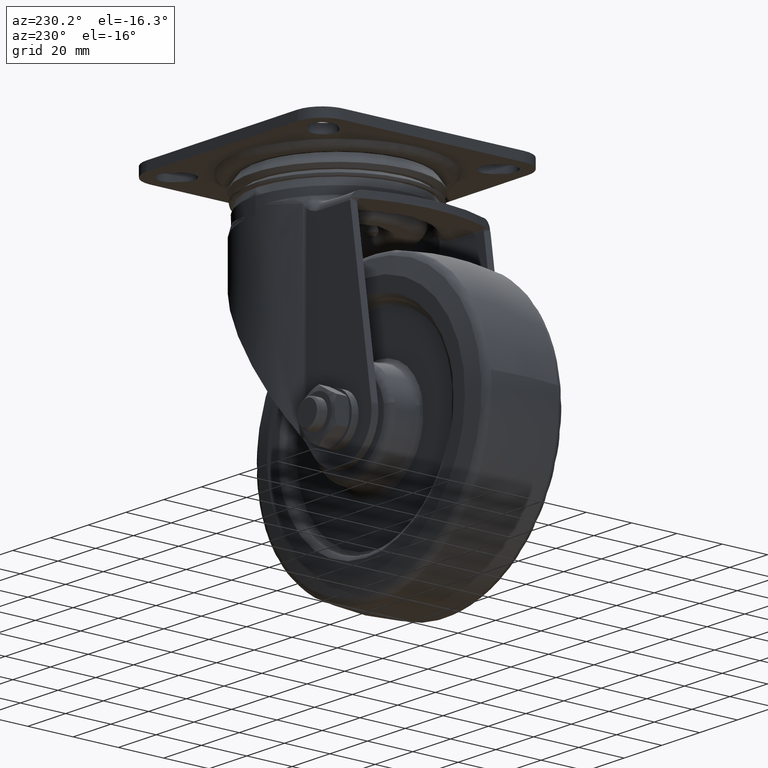
[diagram: clean part render]
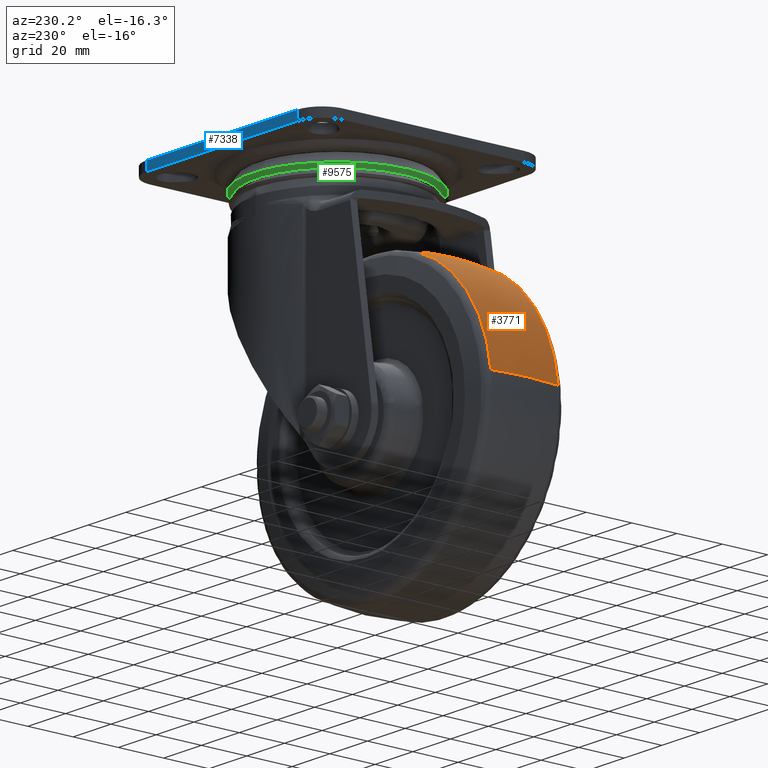
[diagram: same view with three faces highlighted in distinct colors, each labeled with its STEP entity id]
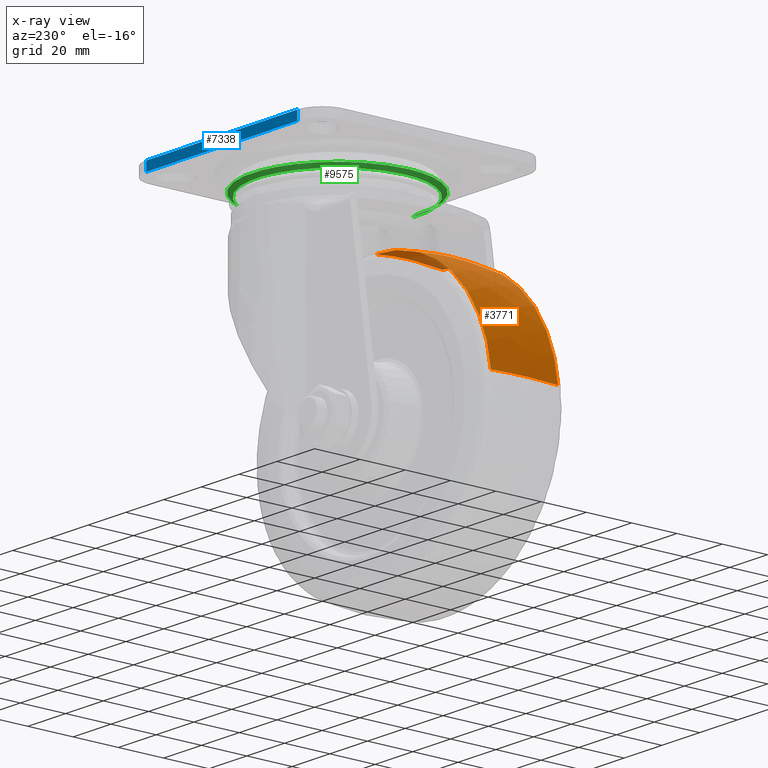
[diagram: x-ray of the same camera — body ghosted, the three highlighted faces saturated]
A machine part, auxiliary view with three faces highlighted in distinct colors.
The next image is the same camera in x-ray (body ghosted, the three faces saturated) — at least one of them is partly hidden behind the body in this view.
Their STEP definitions:

[orange] entity #3771 — the highlighted face is a freeform B-spline surface patch.
#2512=CARTESIAN_POINT('',(-99.201345112304438,14.861436919512940,-98.385909278159005));
#2513=VERTEX_POINT('',#2512);
#2529=CARTESIAN_POINT('',(-38.000024999999987,14.861418385091749,-43.886591201509113));
#2530=VERTEX_POINT('',#2529);
#2531=CARTESIAN_POINT('',(-38.000024999999987,14.861418385091749,-43.886591201509113));
#2532=CARTESIAN_POINT('',(-92.866299568593661,14.861427652302343,-43.886593649904484));
#2533=CARTESIAN_POINT('',(-99.201345112304438,14.861436919512938,-98.385909278159005));
#2541=(BOUNDED_CURVE()B_SPLINE_CURVE(2,(#2531,#2532,#2533),.UNSPECIFIED.,.F.,.U.)B_SPLINE_CURVE_WITH_KNOTS((3,3),(0.500000000000000,0.730000148657227),.UNSPECIFIED.)CURVE()GEOMETRIC_REPRESENTATION_ITEM()RATIONAL_B_SPLINE_CURVE((1.0,0.730538064528849,0.956886410784328))REPRESENTATION_ITEM(''));
#2542=EDGE_CURVE('',#2530,#2513,#2541,.T.);
#2680=CARTESIAN_POINT('',(-38.000025000000001,-14.861443849847680,-43.886594250674079));
#2681=VERTEX_POINT('',#2680);
#2695=CARTESIAN_POINT('',(-99.201344261339244,-14.861444115349880,-98.385909419852737));
#2696=VERTEX_POINT('',#2695);
#2697=CARTESIAN_POINT('',(-38.000025000000001,-14.861443849847680,-43.886594250674079));
#2698=CARTESIAN_POINT('',(-92.866299178750495,-14.861443982598788,-43.886595224230526));
#2699=CARTESIAN_POINT('',(-99.201344261339244,-14.861444115349883,-98.385909419852737));
#2707=(BOUNDED_CURVE()B_SPLINE_CURVE(2,(#2697,#2698,#2699),.UNSPECIFIED.,.F.,.U.)B_SPLINE_CURVE_WITH_KNOTS((3,3),(0.500000000000000,0.730000148773882),.UNSPECIFIED.)CURVE()GEOMETRIC_REPRESENTATION_ITEM()RATIONAL_B_SPLINE_CURVE((1.0,0.730538064392179,0.956886411013935))REPRESENTATION_ITEM(''));
#2708=EDGE_CURVE('',#2681,#2696,#2707,.T.);
#3695=CARTESIAN_POINT('',(-38.000025000000001,-14.861443849847682,-43.886594250674072));
#3696=CARTESIAN_POINT('',(-38.000024999999994,-7.457167853504868,-43.0));
#3697=CARTESIAN_POINT('',(-38.000025000000001,7.898711E-015,-43.0));
#3698=CARTESIAN_POINT('',(-38.000025000000001,7.457154984536426,-43.0));
#3699=CARTESIAN_POINT('',(-38.000024999999994,14.861418385091746,-43.886591201509113));
#3707=(BOUNDED_CURVE()B_SPLINE_CURVE(2,(#3695,#3696,#3697,#3698,#3699),.UNSPECIFIED.,.F.,.U.)B_SPLINE_CURVE_WITH_KNOTS((3,2,3),(0.441281283883758,0.500000000000000,0.558718616378616),.UNSPECIFIED.)CURVE()GEOMETRIC_REPRESENTATION_ITEM()RATIONAL_B_SPLINE_CURVE((0.972228169688118,0.984266367436061,1.0,0.984266394160677,0.972228210583480))REPRESENTATION_ITEM(''));
#3708=EDGE_CURVE('',#2681,#2530,#3707,.T.);
#3714=CARTESIAN_POINT('',(-99.201344261339244,-14.861444115349883,-98.385909419852737));
#3715=CARTESIAN_POINT('',(-100.082008679766740,-7.457167987679913,-98.283539483788601));
#3716=CARTESIAN_POINT('',(-100.082008678535560,-5.516338E-014,-98.283539473199625));
#3717=CARTESIAN_POINT('',(-100.082008677304390,7.457164351163504,-98.283539462610648));
#3718=CARTESIAN_POINT('',(-99.201345112304423,14.861436919512945,-98.385909278159005));
#3726=(BOUNDED_CURVE()B_SPLINE_CURVE(2,(#3714,#3715,#3716,#3717,#3718),.UNSPECIFIED.,.F.,.U.)B_SPLINE_CURVE_WITH_KNOTS((3,2,3),(0.441281282843847,0.500000000000000,0.558718688972271),.UNSPECIFIED.)CURVE()GEOMETRIC_REPRESENTATION_ITEM()RATIONAL_B_SPLINE_CURVE((0.930311638880463,0.941830823334884,0.956886118190660,0.941830830561143,0.930311649938449))REPRESENTATION_ITEM(''));
#3727=EDGE_CURVE('',#2696,#2513,#3726,.T.);
#3732=CARTESIAN_POINT('',(-37.601506812507964,-16.359849631098349,-44.075202965476478));
#3733=CARTESIAN_POINT('',(-37.594530998867967,-8.215257090693427,-43.0));
#3734=CARTESIAN_POINT('',(-37.594530998867974,7.898711E-015,-43.000000000000021));
#3735=CARTESIAN_POINT('',(-37.594530998867953,8.215253233041887,-42.999999999999993));
#3736=CARTESIAN_POINT('',(-37.601506805984833,16.359842015055975,-44.075201960049938));
#3737=CARTESIAN_POINT('',(-37.800497803771606,-16.359849631098346,-44.075202965476493));
#3738=CARTESIAN_POINT('',(-37.797005203983971,-8.215257090693427,-42.999999999999993));
#3739=CARTESIAN_POINT('',(-37.797005203983979,7.898711E-015,-43.000000000000021));
#3740=CARTESIAN_POINT('',(-37.797005203983964,8.215253233041885,-42.999999999999993));
#3741=CARTESIAN_POINT('',(-37.800497800505646,16.359842015055971,-44.075201960049938));
#3742=CARTESIAN_POINT('',(-92.698296984222708,-16.359849631098353,-44.075202965476471));
#3743=CARTESIAN_POINT('',(-93.655756301684022,-8.215257090693429,-42.999999999999993));
#3744=CARTESIAN_POINT('',(-93.655756301683994,7.898711E-015,-42.999999999999986));
#3745=CARTESIAN_POINT('',(-93.655756301683994,8.215253233041887,-42.999999999999986));
#3746=CARTESIAN_POINT('',(-92.698297879546672,16.359842015055985,-44.075201960049938));
#3747=CARTESIAN_POINT('',(-99.038074149320352,-16.359849631098342,-98.614816507233655));
#3748=CARTESIAN_POINT('',(-100.106507332996340,-8.215257090693431,-98.494295641611401));
#3749=CARTESIAN_POINT('',(-100.106507332996340,7.898711E-015,-98.494295641611416));
#3750=CARTESIAN_POINT('',(-100.106507332996330,8.215253233041887,-98.494295641611416));
#3751=CARTESIAN_POINT('',(-99.038075148416411,16.359842015055978,-98.614816394534159));
#3752=CARTESIAN_POINT('',(-99.062100653041355,-16.359849631098346,-98.821510874177136));
#3753=CARTESIAN_POINT('',(-100.130954405759440,-8.215257090693431,-98.704608065219517));
#3754=CARTESIAN_POINT('',(-100.130954405759440,7.898711E-015,-98.704608065219517));
#3755=CARTESIAN_POINT('',(-100.130954405759450,8.215253233041887,-98.704608065219531));
#3756=CARTESIAN_POINT('',(-99.062101652530686,16.359842015055982,-98.821510764860889));
#3764=(BOUNDED_SURFACE()B_SPLINE_SURFACE(2,2,((#3732,#3737,#3742,#3747,#3752),(#3733,#3738,#3743,#3748,#3753),(#3734,#3739,#3744,#3749,#3754),(#3735,#3740,#3745,#3750,#3755),(#3736,#3741,#3746,#3751,#3756)),.UNSPECIFIED.,.F.,.F.,.U.)B_SPLINE_SURFACE_WITH_KNOTS((3,2,3),(3,1,1,3),(0.0,16.647949397397330,33.295891112673559),(0.0,0.475823408504654,95.640445679976921,96.116330645037749),.UNSPECIFIED.)GEOMETRIC_REPRESENTATION_ITEM()RATIONAL_B_SPLINE_SURFACE(((0.972473224010546,0.971166522516549,0.708519685427588,0.929143170580955,0.930240941834553),(0.985342567184642,0.984018573296841,0.717895967213286,0.941439100201269,0.942551398944818),(1.002694619295848,1.001347309647924,0.730538238691624,0.958018004706425,0.959149891222191),(0.985342575191668,0.984018581293108,0.717895973047006,0.941439107851530,0.942551406604117),(0.972473235887548,0.971166534377591,0.708519694080874,0.929143181928758,0.930240953195764)))REPRESENTATION_ITEM('')SURFACE());
#3765=ORIENTED_EDGE('',*,*,#2542,.T.);
#3766=ORIENTED_EDGE('',*,*,#3727,.F.);
#3767=ORIENTED_EDGE('',*,*,#2708,.F.);
#3768=ORIENTED_EDGE('',*,*,#3708,.T.);
#3769=EDGE_LOOP('',(#3765,#3766,#3767,#3768));
#3770=FACE_OUTER_BOUND('',#3769,.T.);
#3771=ADVANCED_FACE('',(#3770),#3764,.T.);

[blue] entity #7338 — the highlighted face is a freeform B-spline surface patch.
#7023=CARTESIAN_POINT('',(39.999977896509812,50.999999999997698,-4.0));
#7024=VERTEX_POINT('',#7023);
#7040=CARTESIAN_POINT('',(39.999977896509812,50.999999999997698,0.0));
#7041=VERTEX_POINT('',#7040);
#7042=CARTESIAN_POINT('',(39.999977896509812,50.999999999997698,-4.0));
#7043=CARTESIAN_POINT('',(39.999977896509812,50.999999999997698,0.0));
#7044=QUASI_UNIFORM_CURVE('',1,(#7042,#7043),.UNSPECIFIED.,.F.,.U.);
#7045=EDGE_CURVE('',#7024,#7041,#7044,.T.);
#7280=CARTESIAN_POINT('',(-39.999977544248303,51.0,-4.0));
#7281=VERTEX_POINT('',#7280);
#7296=CARTESIAN_POINT('',(-39.999977544248303,51.0,0.0));
#7297=VERTEX_POINT('',#7296);
#7311=CARTESIAN_POINT('',(-39.999977544248303,51.0,-4.0));
#7312=CARTESIAN_POINT('',(-39.999977544248303,51.0,0.0));
#7313=QUASI_UNIFORM_CURVE('',1,(#7311,#7312),.UNSPECIFIED.,.F.,.U.);
#7314=EDGE_CURVE('',#7281,#7297,#7313,.T.);
#7319=CARTESIAN_POINT('',(-43.995975163458738,51.0,-4.199799992247224));
#7320=CARTESIAN_POINT('',(-43.995975163458731,51.0,0.199800099535584));
#7321=CARTESIAN_POINT('',(43.995977661486272,51.0,-4.199799992247224));
#7322=CARTESIAN_POINT('',(43.995977661486272,51.0,0.199800099535584));
#7323=B_SPLINE_SURFACE_WITH_KNOTS('',1,1,((#7319,#7321),(#7320,#7322)),.UNSPECIFIED.,.F.,.F.,.U.,(2,2),(2,2),(0.0,4.399600091782808),(0.0,87.991952824945002),.UNSPECIFIED.);
#7324=CARTESIAN_POINT('',(39.999977896509812,50.999999999997698,-4.0));
#7325=CARTESIAN_POINT('',(-39.999977544248303,51.0,-4.0));
#7326=QUASI_UNIFORM_CURVE('',1,(#7324,#7325),.UNSPECIFIED.,.F.,.U.);
#7327=EDGE_CURVE('',#7024,#7281,#7326,.T.);
#7328=ORIENTED_EDGE('',*,*,#7327,.T.);
#7329=ORIENTED_EDGE('',*,*,#7314,.T.);
#7330=CARTESIAN_POINT('',(39.999977896509812,50.999999999997698,0.0));
#7331=CARTESIAN_POINT('',(-39.999977544248303,51.0,0.0));
#7332=QUASI_UNIFORM_CURVE('',1,(#7330,#7331),.UNSPECIFIED.,.F.,.U.);
#7333=EDGE_CURVE('',#7041,#7297,#7332,.T.);
#7334=ORIENTED_EDGE('',*,*,#7333,.F.);
#7335=ORIENTED_EDGE('',*,*,#7045,.F.);
#7336=EDGE_LOOP('',(#7328,#7329,#7334,#7335));
#7337=FACE_OUTER_BOUND('',#7336,.T.);
#7338=ADVANCED_FACE('',(#7337),#7323,.T.);

[green] entity #9575 — the highlighted face is a freeform B-spline surface patch.
#9439=CARTESIAN_POINT('',(29.885800851077970,19.066830481161404,-12.387497815519083));
#9440=CARTESIAN_POINT('',(18.437773186621158,37.010739682831080,-12.387497815519081));
#9441=CARTESIAN_POINT('',(-2.781377839684592,35.340756279691448,-12.387497815519080));
#9442=CARTESIAN_POINT('',(-38.122134119376035,32.559378440006853,-12.387497815519081));
#9443=CARTESIAN_POINT('',(-35.340756279691448,-2.781377839684592,-12.387497815519080));
#9444=CARTESIAN_POINT('',(-32.559378440006853,-38.122134119376035,-12.387497815519081));
#9445=CARTESIAN_POINT('',(2.781377839684592,-35.340756279691448,-12.387497815519080));
#9446=CARTESIAN_POINT('',(31.657230039179819,20.196983901082245,-10.811568068330599));
#9447=CARTESIAN_POINT('',(19.530640322728178,39.204487304790518,-10.811568068330599));
#9448=CARTESIAN_POINT('',(-2.946239203544587,37.435518521981521,-10.811568068330599));
#9449=CARTESIAN_POINT('',(-40.381757725526114,34.489279318436942,-10.811568068330601));
#9450=CARTESIAN_POINT('',(-37.435518521981521,-2.946239203544587,-10.811568068330599));
#9451=CARTESIAN_POINT('',(-34.489279318436942,-40.381757725526114,-10.811568068330601));
#9452=CARTESIAN_POINT('',(2.946239203544587,-37.435518521981521,-10.811568068330599));
#9460=(BOUNDED_SURFACE()B_SPLINE_SURFACE(2,1,((#9439,#9446),(#9440,#9447),(#9441,#9448),(#9442,#9449),(#9443,#9450),(#9444,#9451),(#9445,#9452)),.UNSPECIFIED.,.F.,.F.,.U.)B_SPLINE_SURFACE_WITH_KNOTS((3,2,2,3),(2,2),(0.0,42.307554674293421,104.524546842372000,166.741539010450510),(0.0,2.626549578647139),.UNSPECIFIED.)GEOMETRIC_REPRESENTATION_ITEM()RATIONAL_B_SPLINE_SURFACE(((0.872532871172386,0.872532871172386),(0.800832611206852,0.800832611206852),(1.0,1.0),(0.707106781186548,0.707106781186548),(1.0,1.0),(0.707106781186548,0.707106781186548),(1.0,1.0)))REPRESENTATION_ITEM('')SURFACE());
#9461=CARTESIAN_POINT('',(-4.426286966306815,37.237883878781162,-10.850005379253060));
#9462=VERTEX_POINT('',#9461);
#9463=CARTESIAN_POINT('',(31.614024449213510,20.169419183545578,-10.850005379236590));
#9464=VERTEX_POINT('',#9463);
#9465=CARTESIAN_POINT('',(-4.426286966306814,37.237883878781162,-10.850005379253059));
#9466=CARTESIAN_POINT('',(-2.220906075885679,37.500026827682952,-10.850005379237643));
#9467=CARTESIAN_POINT('',(0.0,37.500026827682959,-10.850005379237640));
#9468=CARTESIAN_POINT('',(20.557276807284005,37.500026827682959,-10.850005379237642));
#9469=CARTESIAN_POINT('',(31.614024449213506,20.169419183545582,-10.850005379236594));
#9477=(BOUNDED_CURVE()B_SPLINE_CURVE(2,(#9465,#9466,#9467,#9468,#9469),.UNSPECIFIED.,.F.,.U.)B_SPLINE_CURVE_WITH_KNOTS((3,2,3),(0.229562473514808,0.250000000000000,0.407950112627361),.UNSPECIFIED.)CURVE()GEOMETRIC_REPRESENTATION_ITEM()RATIONAL_B_SPLINE_CURVE((0.956026754186246,0.976055948332667,1.0,0.814949932402499,0.863729296954807))REPRESENTATION_ITEM(''));
#9478=EDGE_CURVE('',#9462,#9464,#9477,.T.);
#9479=ORIENTED_EDGE('',*,*,#9478,.T.);
#9480=CARTESIAN_POINT('',(29.927952646137339,19.093722888567019,-12.349997999998569));
#9481=VERTEX_POINT('',#9480);
#9482=CARTESIAN_POINT('',(29.927952646137339,19.093722888567019,-12.349997999998569));
#9483=CARTESIAN_POINT('',(31.614024449213510,20.169419183545578,-10.850005379236590));
#9484=QUASI_UNIFORM_CURVE('',1,(#9482,#9483),.UNSPECIFIED.,.F.,.U.);
#9485=EDGE_CURVE('',#9481,#9464,#9484,.T.);
#9486=ORIENTED_EDGE('',*,*,#9485,.F.);
#9487=CARTESIAN_POINT('',(-35.500036666666851,0.0,-12.349998000000021));
#9488=VERTEX_POINT('',#9487);
#9489=CARTESIAN_POINT('',(-35.500036666666851,0.0,-12.349998000000021));
#9490=CARTESIAN_POINT('',(-35.500036666666844,35.500036666666844,-12.349998000000021));
#9491=CARTESIAN_POINT('',(0.0,35.500036666666851,-12.349998000000021));
#9492=CARTESIAN_POINT('',(19.460894888910296,35.500036666666851,-12.349998000000028));
#9493=CARTESIAN_POINT('',(29.927952646137342,19.093722888567019,-12.349997999998568));
#9501=(BOUNDED_CURVE()B_SPLINE_CURVE(2,(#9489,#9490,#9491,#9492,#9493),.UNSPECIFIED.,.F.,.U.)B_SPLINE_CURVE_WITH_KNOTS((3,2,3),(0.0,0.250000000000000,0.407950112627265),.UNSPECIFIED.)CURVE()GEOMETRIC_REPRESENTATION_ITEM()RATIONAL_B_SPLINE_CURVE((1.0,0.707106781186548,1.0,0.814949932402612,0.863729296954747))REPRESENTATION_ITEM(''));
#9502=EDGE_CURVE('',#9488,#9481,#9501,.T.);
#9503=ORIENTED_EDGE('',*,*,#9502,.F.);
#9504=CARTESIAN_POINT('',(2.785300775356830,-35.390601901172857,-12.349997999980870));
#9505=VERTEX_POINT('',#9504);
#9506=CARTESIAN_POINT('',(2.785300775356831,-35.390601901172865,-12.349997999980864));
#9507=CARTESIAN_POINT('',(1.394800239593180,-35.500036666666844,-12.349998000000026));
#9508=CARTESIAN_POINT('',(0.0,-35.500036666666851,-12.349998000000021));
#9509=CARTESIAN_POINT('',(-35.500036666666844,-35.500036666666844,-12.349998000000021));
#9510=CARTESIAN_POINT('',(-35.500036666666851,0.0,-12.349998000000021));
#9518=(BOUNDED_CURVE()B_SPLINE_CURVE(2,(#9506,#9507,#9508,#9509,#9510),.UNSPECIFIED.,.F.,.U.)B_SPLINE_CURVE_WITH_KNOTS((3,2,3),(0.736331300630996,0.750000000000000,1.0),.UNSPECIFIED.)CURVE()GEOMETRIC_REPRESENTATION_ITEM()RATIONAL_B_SPLINE_CURVE((0.969723356168120,0.983986122579276,1.0,0.707106781186548,1.0))REPRESENTATION_ITEM(''));
#9519=EDGE_CURVE('',#9505,#9488,#9518,.T.);
#9520=ORIENTED_EDGE('',*,*,#9519,.F.);
#9521=CARTESIAN_POINT('',(2.942218194720820,-37.384426759977501,-10.850005379232369));
#9522=VERTEX_POINT('',#9521);
#9523=CARTESIAN_POINT('',(2.785300775356830,-35.390601901172857,-12.349997999980870));
#9524=CARTESIAN_POINT('',(2.942218194720820,-37.384426759977501,-10.850005379232369));
#9525=QUASI_UNIFORM_CURVE('',1,(#9523,#9524),.UNSPECIFIED.,.F.,.U.);
#9526=EDGE_CURVE('',#9505,#9522,#9525,.T.);
#9527=ORIENTED_EDGE('',*,*,#9526,.T.);
#9528=CARTESIAN_POINT('',(2.289321870604375,-37.430081718476217,-10.850005379280830));
#9529=VERTEX_POINT('',#9528);
#9530=CARTESIAN_POINT('',(2.942218194720820,-37.384426759977508,-10.850005379232375));
#9531=CARTESIAN_POINT('',(2.615969245207009,-37.410103109147819,-10.850005379237635));
#9532=CARTESIAN_POINT('',(2.289321870604374,-37.430081718476217,-10.850005379280828));
#9540=(BOUNDED_CURVE()B_SPLINE_CURVE(2,(#9530,#9531,#9532),.UNSPECIFIED.,.F.,.U.)B_SPLINE_CURVE_WITH_KNOTS((3,3),(0.736331300632305,0.739332962239621),.UNSPECIFIED.)CURVE()GEOMETRIC_REPRESENTATION_ITEM()RATIONAL_B_SPLINE_CURVE((0.969723356170852,0.972855475562407,0.976072041668171))REPRESENTATION_ITEM(''));
#9541=EDGE_CURVE('',#9522,#9529,#9540,.T.);
#9542=ORIENTED_EDGE('',*,*,#9541,.T.);
#9543=CARTESIAN_POINT('',(-37.500026827682959,0.0,-10.850005379237640));
#9544=VERTEX_POINT('',#9543);
#9545=CARTESIAN_POINT('',(2.289321870604375,-37.430081718476217,-10.850005379280828));
#9546=CARTESIAN_POINT('',(1.145729443612316,-37.500026827682966,-10.850005379237638));
#9547=CARTESIAN_POINT('',(0.0,-37.500026827682959,-10.850005379237640));
#9548=CARTESIAN_POINT('',(-37.500026827682959,-37.500026827682959,-10.850005379237640));
#9549=CARTESIAN_POINT('',(-37.500026827682959,0.0,-10.850005379237640));
#9557=(BOUNDED_CURVE()B_SPLINE_CURVE(2,(#9545,#9546,#9547,#9548,#9549),.UNSPECIFIED.,.F.,.U.)B_SPLINE_CURVE_WITH_KNOTS((3,2,3),(0.739332962239620,0.750000000000000,1.0),.UNSPECIFIED.)CURVE()GEOMETRIC_REPRESENTATION_ITEM()RATIONAL_B_SPLINE_CURVE((0.976072041668170,0.987502787900631,1.0,0.707106781186548,1.0))REPRESENTATION_ITEM(''));
#9558=EDGE_CURVE('',#9529,#9544,#9557,.T.);
#9559=ORIENTED_EDGE('',*,*,#9558,.T.);
#9560=CARTESIAN_POINT('',(-37.500026827682959,0.0,-10.850005379237640));
#9561=CARTESIAN_POINT('',(-37.500026827682966,33.306568550674861,-10.850005379237642));
#9562=CARTESIAN_POINT('',(-4.426286966306815,37.237883878781169,-10.850005379253055));
#9570=(BOUNDED_CURVE()B_SPLINE_CURVE(2,(#9560,#9561,#9562),.UNSPECIFIED.,.F.,.U.)B_SPLINE_CURVE_WITH_KNOTS((3,3),(0.0,0.229562473514808),.UNSPECIFIED.)CURVE()GEOMETRIC_REPRESENTATION_ITEM()RATIONAL_B_SPLINE_CURVE((1.0,0.731050832853880,0.956026754186246))REPRESENTATION_ITEM(''));
#9571=EDGE_CURVE('',#9544,#9462,#9570,.T.);
#9572=ORIENTED_EDGE('',*,*,#9571,.T.);
#9573=EDGE_LOOP('',(#9479,#9486,#9503,#9520,#9527,#9542,#9559,#9572));
#9574=FACE_OUTER_BOUND('',#9573,.T.);
#9575=ADVANCED_FACE('',(#9574),#9460,.T.);